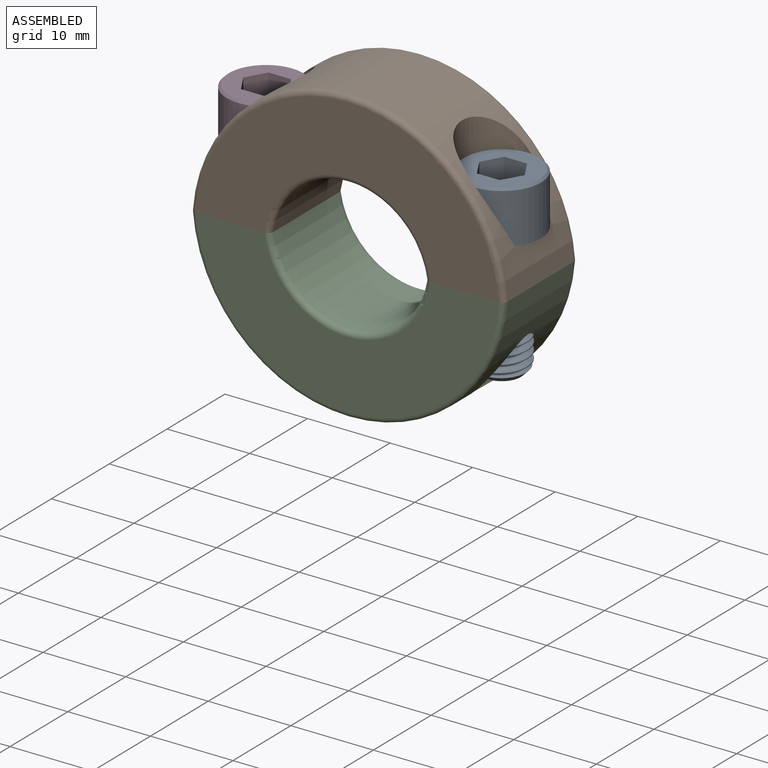
[diagram: assembled view]
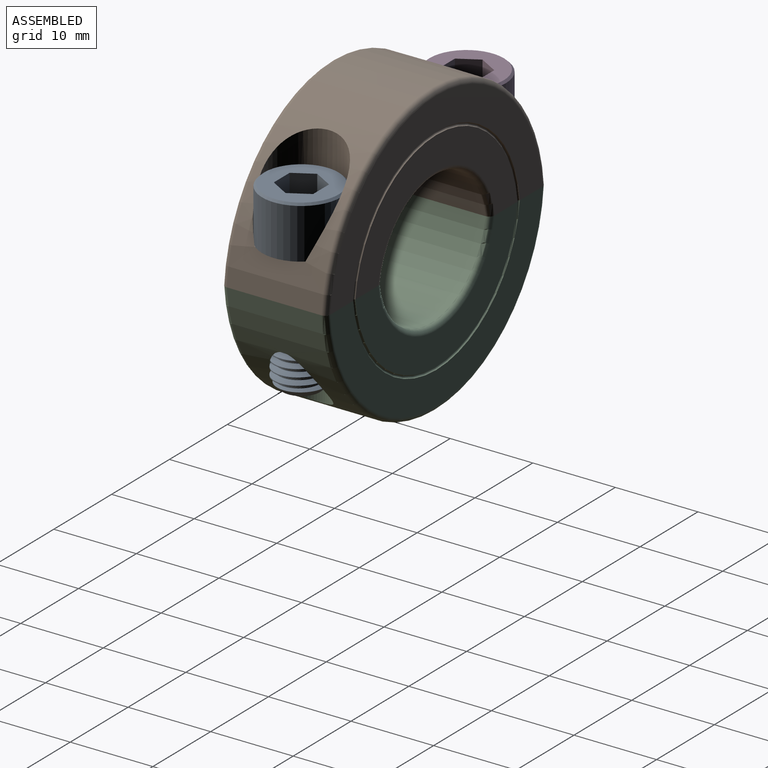
[diagram: assembled view, second angle]
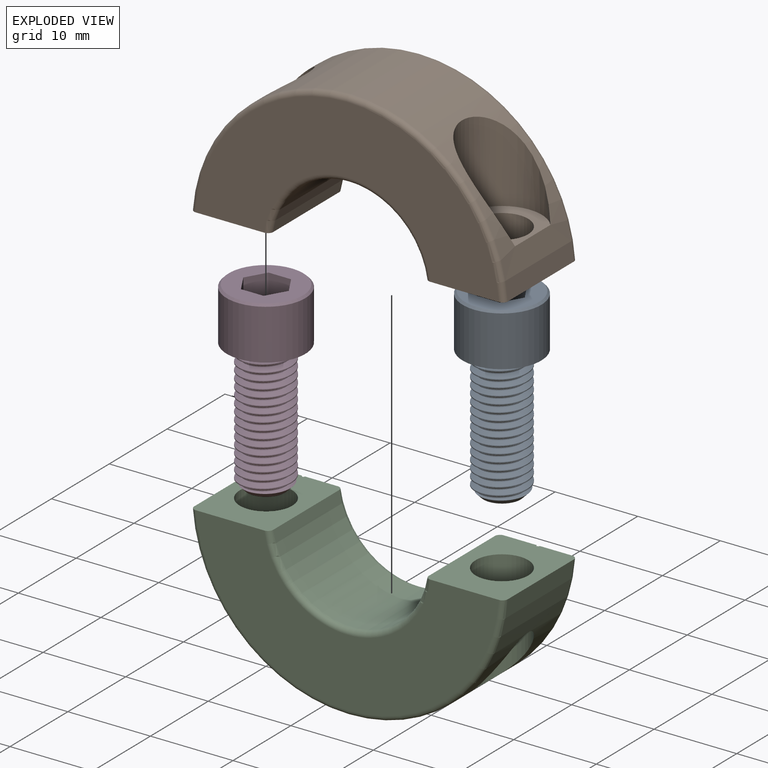
[diagram: exploded view]
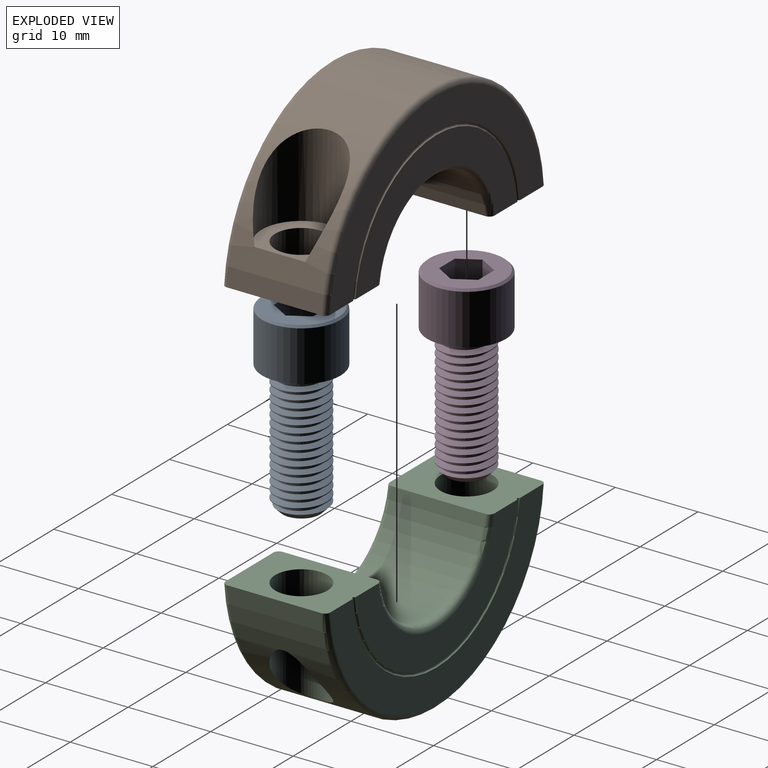
[diagram: exploded view, second angle]
ASSEMBLY  parts=4 mates=3
PART A: 17 faces, bbox 9.9x9.9x22.7 mm
  f0: cylinder r=3.17mm len=14.97mm, axis (0,0,-1), area 37.2mm2, adj f2,f13,f14,f15
  f1: plane 4.54x4.54mm, normal (0,0,-1), area 16.2mm2, adj f13
  f2: plane 9.88x9.88mm, normal (0,0,-1), area 45.1mm2, adj f0,f3,f14,f15,f16
  f3: cylinder r=4.76mm len=9.53mm, axis (0,0,-1), area 182.4mm2, adj f2,f12
  f4: plane 9.02x9.02mm, normal (0,0,1), area 44.2mm2, adj f5,f6,f7,f8,f9,f10,f12
  f5: plane 4.76x2.75mm, normal (0,1,0), area 13.1mm2, adj f4,f6,f10,f11
  f6: plane 4.76x2.38mm, normal (0.87,0.5,0), area 13.1mm2, adj f4,f5,f7,f11
  f7: plane 4.76x2.38mm, normal (0.87,-0.5,0), area 13.1mm2, adj f4,f6,f8,f11
  f8: plane 4.76x2.75mm, normal (0,-1,0), area 13.1mm2, adj f4,f7,f9,f11
  f9: plane 4.76x2.38mm, normal (-0.87,-0.5,0), area 13.1mm2, adj f4,f8,f10,f11
  f10: plane 4.76x2.38mm, normal (-0.87,0.5,0), area 13.1mm2, adj f4,f5,f9,f11
  f11: plane 5.5x4.76mm, normal (0,0,1), area 19.6mm2, adj f5,f6,f7,f8,f9,f10
  f12: cone r=4.76mm half-angle=45deg, axis (0,0,-1), area 10.5mm2, adj f3,f4
  f13: cone r=2.27mm half-angle=45deg, axis (0,0,1), area 14.2mm2, adj f0,f1,f14,f15,f16
  f14: bspline ~16.47x6.45mm, area 206.6mm2, adj f0,f2,f13,f16
  f15: bspline ~16.02x6.45mm, area 207.1mm2, adj f0,f2,f13,f16
  f16: cylinder r=2.59mm len=15.56mm, axis (0,0,-1), area 31.4mm2, adj f2,f13,f14,f15
PART B: 18 faces, bbox 41.2x12.9x19.3 mm
  f0: plane 36.72x16.99mm, normal (0,1,0), area 192.2mm2, adj f2,f4,f7,f11
  f1: cylinder r=19.05mm len=37.99mm, axis (0,1,0), area 429.8mm2, adj f2,f4,f7,f8,f12,f13,f15,f16
  f2: plane 12.74x9.62mm, normal (0,0,-1), area 89.6mm2, adj f0,f1,f3,f5,f6,f7,f8,f9
  f3: cylinder r=9.53mm len=18.83mm, axis (0,1,0), area 309.2mm2, adj f2,f4,f9,f10
  f4: plane 12.74x9.62mm, normal (0,0,-1), area 89.6mm2, adj f0,f1,f3,f5,f6,f7,f8,f9
  f5: plane 36.72x16.99mm, normal (0,-1,0), area 346.9mm2, adj f2,f4,f8,f9
  f6: plane 28.05x12.67mm, normal (0,1,0), area 138.7mm2, adj f2,f4,f10,f11
  f7: torus R=18.41mm, axis (0,-1,0), area 56.1mm2, adj f0,f1,f2,f4
  f8: torus R=18.41mm, axis (0,-1,0), area 56.1mm2, adj f1,f2,f4,f5
  f9: torus R=10.16mm, axis (0,-1,0), area 27.7mm2, adj f2,f3,f4,f5
  f10: torus R=10.16mm, axis (0,-1,0), area 27.7mm2, adj f2,f3,f4,f6
  f11: torus R=14.29mm, axis (0,1,0), area 25.1mm2, adj f0,f2,f4,f6
  f12: cylinder r=4.83mm len=10.34mm, axis (0,0,-1), area 167.3mm2, adj f1,f13
  f13: plane 9.65x8.55mm, normal (0,0,1), area 36.9mm2, adj f1,f12,f14
  f14: cylinder r=3.17mm len=6.35mm, axis (0,0,-1), area 95mm2, adj f2,f13
  f15: cylinder r=4.83mm len=10.34mm, axis (0,0,-1), area 167.3mm2, adj f1,f16
  f16: plane 9.65x8.55mm, normal (0,0,1), area 36.9mm2, adj f1,f15,f17
  f17: cylinder r=3.17mm len=6.35mm, axis (0,0,-1), area 95mm2, adj f4,f16
PART C: 14 faces, bbox 41.2x12.9x19.3 mm
  f0: plane 36.72x16.99mm, normal (0,1,0), area 192.2mm2, adj f2,f4,f10,f11
  f1: cylinder r=19.05mm len=37.99mm, axis (0,1,0), area 551.2mm2, adj f2,f4,f7,f10,f12,f13
  f2: plane 12.74x9.62mm, normal (0,0,1), area 89.6mm2, adj f0,f1,f3,f5,f6,f7,f8,f9
  f3: cylinder r=9.53mm len=18.83mm, axis (0,1,0), area 309.2mm2, adj f2,f4,f8,f9
  f4: plane 12.74x9.62mm, normal (0,0,1), area 89.6mm2, adj f0,f1,f3,f5,f6,f7,f8,f9
  f5: plane 36.72x16.99mm, normal (0,-1,0), area 346.9mm2, adj f2,f4,f7,f8
  f6: plane 28.05x12.67mm, normal (0,1,0), area 138.7mm2, adj f2,f4,f9,f11
  f7: torus R=18.41mm, axis (0,-1,0), area 56.1mm2, adj f1,f2,f4,f5
  f8: torus R=10.16mm, axis (0,-1,0), area 27.7mm2, adj f2,f3,f4,f5
  f9: torus R=10.16mm, axis (0,-1,0), area 27.7mm2, adj f2,f3,f4,f6
  f10: torus R=18.41mm, axis (0,-1,0), area 56.1mm2, adj f0,f1,f2,f4
  f11: torus R=14.29mm, axis (0,1,0), area 25.1mm2, adj f0,f2,f4,f6
  f12: cylinder r=3.17mm len=14.04mm, axis (0,0,-1), area 212.8mm2, adj f1,f4
  f13: cylinder r=3.17mm len=14.04mm, axis (0,0,1), area 212.7mm2, adj f1,f2
PART D: 17 faces, bbox 9.9x9.9x22.7 mm
  f0: cylinder r=3.17mm len=14.97mm, axis (0,0,-1), area 37.2mm2, adj f2,f13,f14,f15
  f1: plane 4.54x4.54mm, normal (0,0,-1), area 16.2mm2, adj f13
  f2: plane 9.88x9.88mm, normal (0,0,-1), area 45.1mm2, adj f0,f3,f14,f15,f16
  f3: cylinder r=4.76mm len=9.53mm, axis (0,0,-1), area 182.4mm2, adj f2,f12
  f4: plane 9.02x9.02mm, normal (0,0,1), area 44.2mm2, adj f5,f6,f7,f8,f9,f10,f12
  f5: plane 4.76x2.75mm, normal (0,1,0), area 13.1mm2, adj f4,f6,f10,f11
  f6: plane 4.76x2.38mm, normal (0.87,0.5,0), area 13.1mm2, adj f4,f5,f7,f11
  f7: plane 4.76x2.38mm, normal (0.87,-0.5,0), area 13.1mm2, adj f4,f6,f8,f11
  f8: plane 4.76x2.75mm, normal (0,-1,0), area 13.1mm2, adj f4,f7,f9,f11
  f9: plane 4.76x2.38mm, normal (-0.87,-0.5,0), area 13.1mm2, adj f4,f8,f10,f11
  f10: plane 4.76x2.38mm, normal (-0.87,0.5,0), area 13.1mm2, adj f4,f5,f9,f11
  f11: plane 5.5x4.76mm, normal (0,0,1), area 19.6mm2, adj f5,f6,f7,f8,f9,f10
  f12: cone r=4.76mm half-angle=45deg, axis (0,0,-1), area 10.5mm2, adj f3,f4
  f13: cone r=2.27mm half-angle=45deg, axis (0,0,1), area 14.2mm2, adj f0,f1,f14,f15,f16
  f14: bspline ~16.47x6.45mm, area 206.6mm2, adj f0,f2,f13,f16
  f15: bspline ~16.02x6.45mm, area 207.1mm2, adj f0,f2,f13,f16
  f16: cylinder r=2.59mm len=15.56mm, axis (0,0,-1), area 31.4mm2, adj f2,f13,f14,f15
PLACE A t=(42.86,0,-1.43)mm
PLACE B t=(14.29,0,-1.43)mm
PLACE C t=(14.29,0,1.43)mm
PLACE D t=(-14.29,0,0.16)mm
MATE fastened A.f0 <-> B.f15  axis (0,0,1) through (28.58,0,4.76)mm
MATE fastened C.f12 <-> B.f12  axis (0,0,1) through (0,0,0)mm
MATE fastened D.f0 <-> B.f12  axis (0,0,1) through (0,0,6.35)mm
